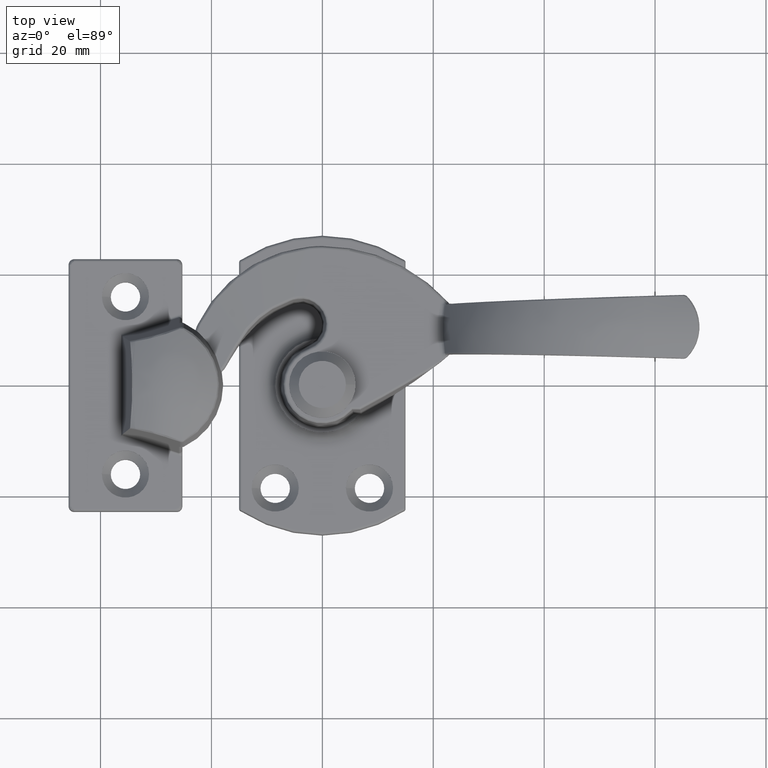
[diagram: clean part render]
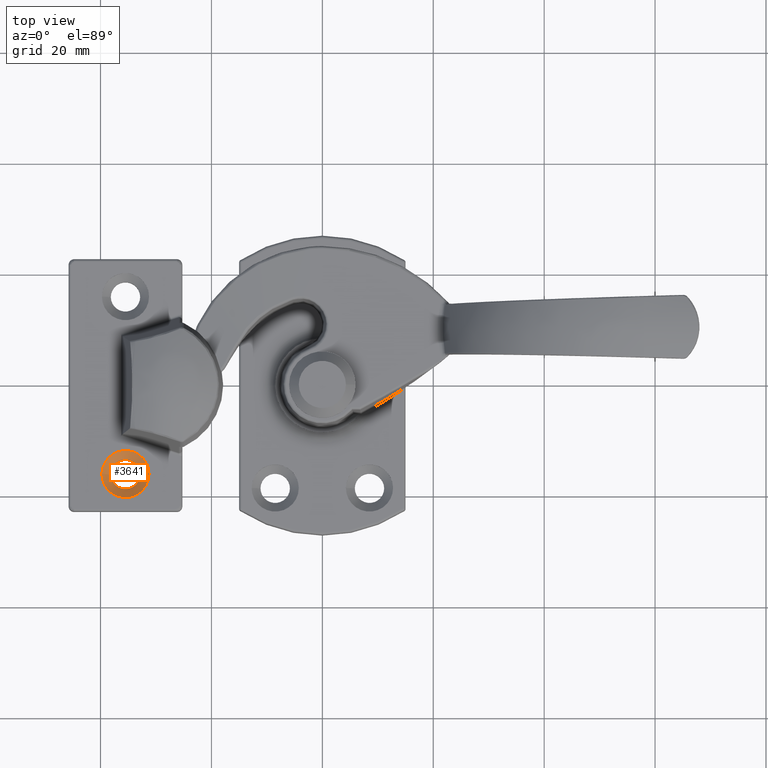
[diagram: same view with one face highlighted and labeled with its STEP entity id]
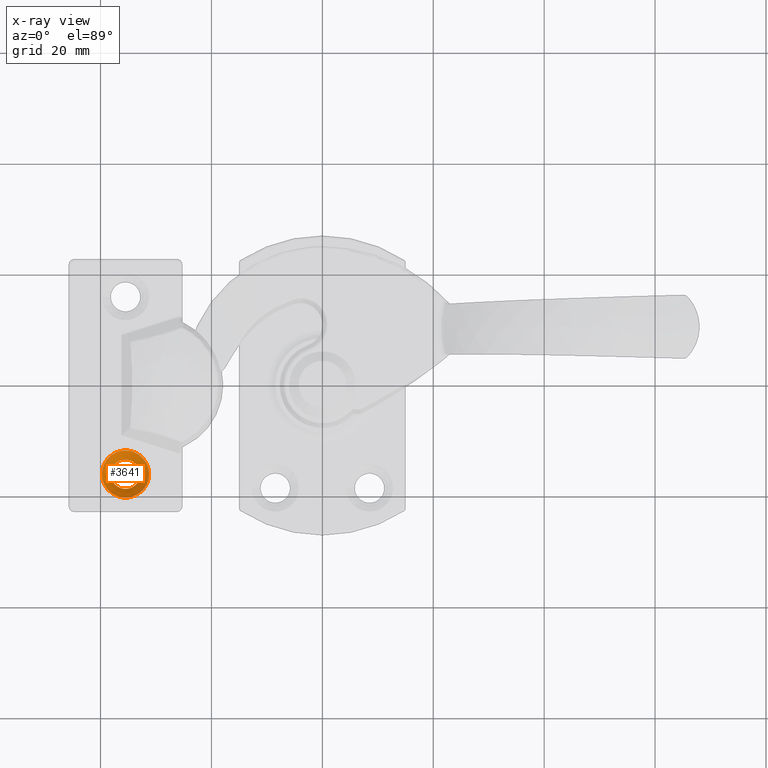
[diagram: x-ray of the same camera — body ghosted, the highlighted face saturated]
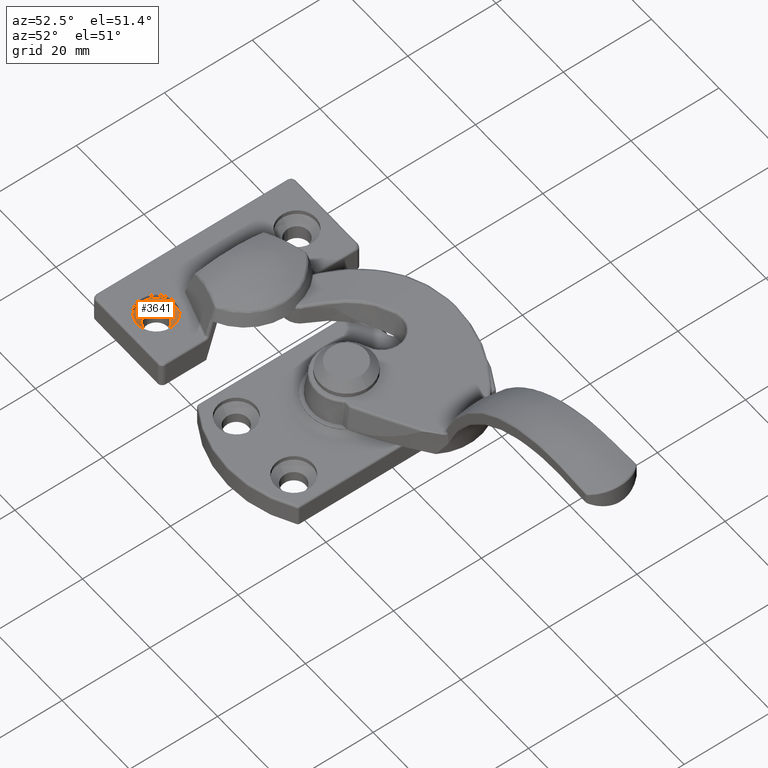
[diagram: same view with one face highlighted and labeled with its STEP entity id]
A machine part, top view. The second image highlights one B-rep face of the part: STEP entity #3641.
The next image is the same camera in x-ray: the body ghosted, the highlighted face saturated — about 0% of this face is hidden behind the body in this view.
A second angle (auxiliary view) of the same face is appended — the face is thin or edge-on in the first view.
In plain terms, the highlighted conical surface has half-angle 45 deg.
Its self-contained STEP definition (entity closure, byte-faithful):
#225=CONICAL_SURFACE('',#4017,3.45,0.785398163397448);
#279=FACE_BOUND('',#1233,.T.);
#956=FACE_OUTER_BOUND('',#1232,.T.);
#1232=EDGE_LOOP('',(#3016));
#1233=EDGE_LOOP('',(#3017));
#1500=CIRCLE('',#4018,2.65);
#1501=CIRCLE('',#4019,4.25);
#1792=VERTEX_POINT('',#6403);
#1793=VERTEX_POINT('',#6405);
#2228=EDGE_CURVE('',#1792,#1792,#1500,.T.);
#2229=EDGE_CURVE('',#1793,#1793,#1501,.T.);
#3016=ORIENTED_EDGE('',*,*,#2228,.F.);
#3017=ORIENTED_EDGE('',*,*,#2229,.F.);
#3641=ADVANCED_FACE('',(#956,#279),#225,.F.);
#4017=AXIS2_PLACEMENT_3D('',#6402,#4840,#4841);
#4018=AXIS2_PLACEMENT_3D('',#6404,#4842,#4843);
#4019=AXIS2_PLACEMENT_3D('',#6406,#4844,#4845);
#4840=DIRECTION('center_axis',(0.,0.,1.));
#4841=DIRECTION('ref_axis',(1.,0.,0.));
#4842=DIRECTION('center_axis',(0.,0.,1.));
#4843=DIRECTION('ref_axis',(1.,0.,0.));
#4844=DIRECTION('center_axis',(0.,0.,-1.));
#4845=DIRECTION('ref_axis',(1.,0.,0.));
#6402=CARTESIAN_POINT('Origin',(0.,-16.,4.2));
#6403=CARTESIAN_POINT('',(-2.65,-16.,3.4));
#6404=CARTESIAN_POINT('Origin',(0.,-16.,3.4));
#6405=CARTESIAN_POINT('',(-4.25,-16.,5.));
#6406=CARTESIAN_POINT('Origin',(0.,-16.,5.));